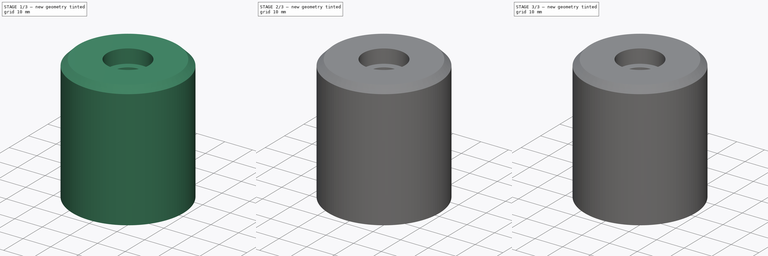
[diagram: build sequence overview — one tinted view per stage of 3, left to right]
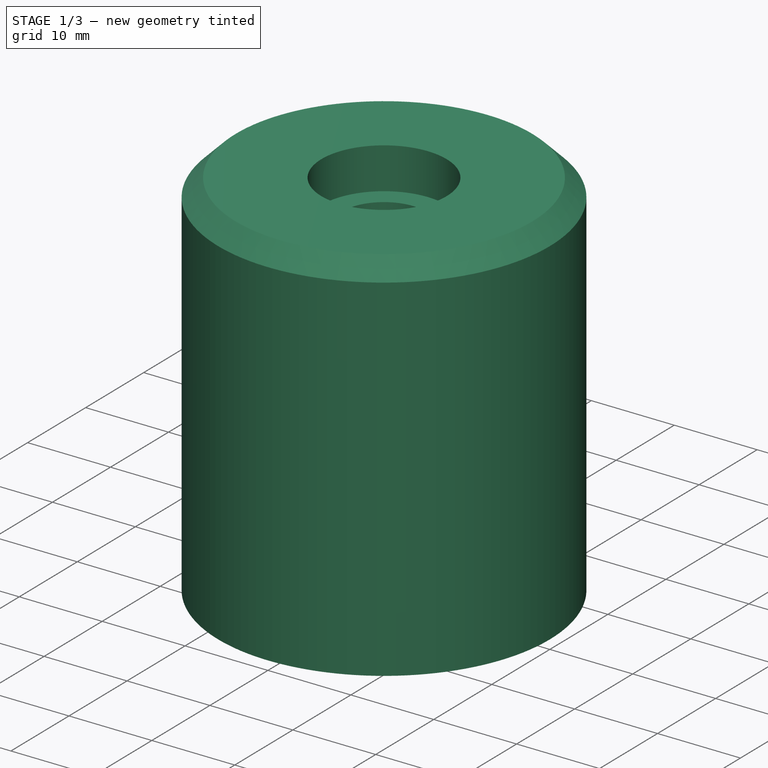
[diagram: stage 1 of 3 — iso view after this stage's code; geometry added in this stage tinted green]
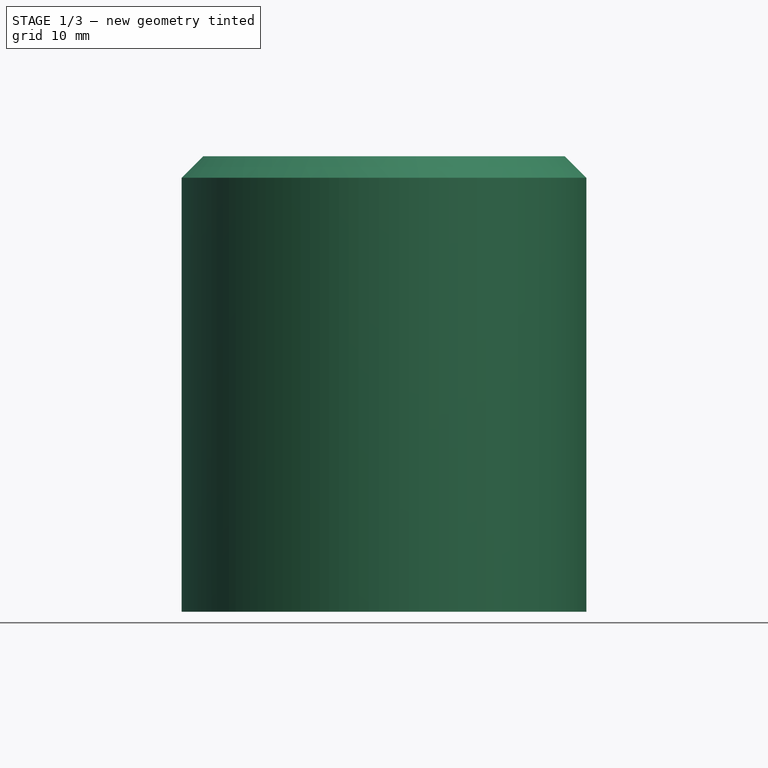
[diagram: stage 1 of 3 — front view after this stage's code; geometry added in this stage tinted green]
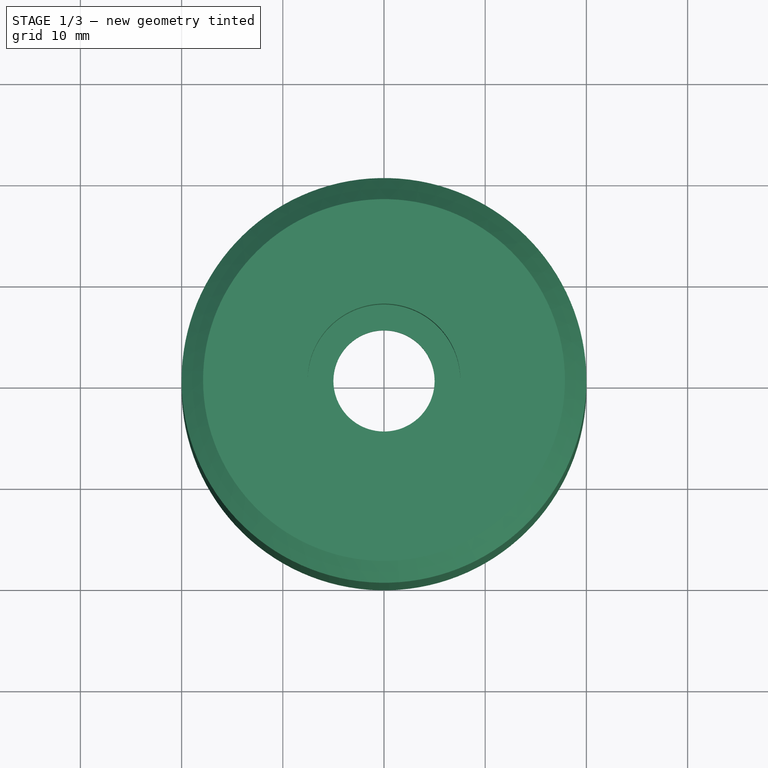
[diagram: stage 1 of 3 — top view after this stage's code; geometry added in this stage tinted green]
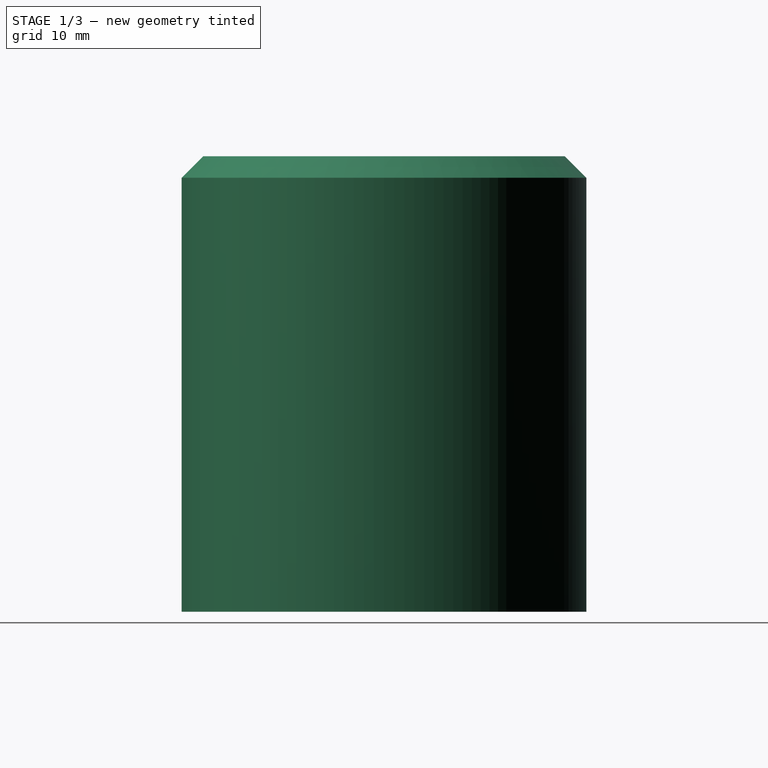
[diagram: stage 1 of 3 — right view after this stage's code; geometry added in this stage tinted green]
FCSTD DOCUMENT  (FreeCAD 0.19R24291 (Git))
Label: windSensorHousing
License: All rights reserved
LicenseURL: http://en.wikipedia.org/wiki/All_rights_reserved
objects: Sketcher::SketchObject×5, PartDesign::Plane×2, PartDesign::Pad×2, PartDesign::Pocket×2, PartDesign::Revolution×1, PartDesign::Chamfer×1, PartDesign::Body×1
note: 20 computed .brp shape members not serialized (recipe doc carries the construction recipe); baked Part::Feature solids carry a one-line shape summary decoded from their .brp

FEATURE [Sketcher::SketchObject] Sketch
  FullyConstrained = false
  MapMode = 5
  Placement = pos=(0,0,0) rot=(1,0,0;1.5708rad)
  Support = -> [XZ_Plane]
  expr: Constraints[35] = .Constraints.thickness
  expr: Constraints[34] = .Constraints.thickness
  expr: Constraints[48] = .Constraints.thickness
  expr: Constraints[39] = .Constraints.thickness
  sketch-geometry (17):
    g0: LineSegment StartX=20 StartY=0 StartZ=0 EndX=20 EndY=42.8787 EndZ=0
    g1: LineSegment StartX=20 StartY=42.8787 StartZ=0 EndX=17.8787 EndY=45 EndZ=0
    g2: LineSegment StartX=17.8787 StartY=45 StartZ=0 EndX=7.55 EndY=45 EndZ=0
    g3: LineSegment StartX=7.55 StartY=45 StartZ=0 EndX=7.55 EndY=40 EndZ=0
    g4: LineSegment StartX=7.55 StartY=40 StartZ=0 EndX=5 EndY=40 EndZ=0
    g5: LineSegment StartX=5 StartY=40 StartZ=0 EndX=5 EndY=38.5 EndZ=0
    g6: LineSegment StartX=5 StartY=38.5 StartZ=0 EndX=9.05 EndY=38.5 EndZ=0
    g7: LineSegment StartX=9.05 StartY=38.5 StartZ=0 EndX=9.05 EndY=43.5 EndZ=0
    g8: LineSegment StartX=9.05 StartY=43.5 StartZ=0 EndX=17.2574 EndY=43.5 EndZ=0
    g9: LineSegment StartX=17.2574 StartY=43.5 StartZ=0 EndX=18.5 EndY=42.2574 EndZ=0
    g10: LineSegment StartX=18.5 StartY=42.2574 StartZ=0 EndX=18.5 EndY=0 EndZ=0
    g11: LineSegment StartX=18.5 StartY=0 StartZ=0 EndX=20 EndY=0 EndZ=0
    g12: LineSegment StartX=9.05 StartY=43.5 StartZ=0 EndX=9.05 EndY=45 EndZ=0
    g13: LineSegment StartX=7.55 StartY=40 StartZ=0 EndX=7.55 EndY=38.5 EndZ=0
    g14: LineSegment StartX=7.55 StartY=40 StartZ=0 EndX=9.05 EndY=40 EndZ=0
    g15: LineSegment StartX=18.5 StartY=19.0145 StartZ=0 EndX=20 EndY=19.0145 EndZ=0
    g16: LineSegment StartX=17.9126 StartY=42.8447 StartZ=0 EndX=18.9733 EndY=43.9054 EndZ=0
  constraints (51):
    c: Vertical(g0)
    c: Coincident(g1,g0)
    c: Coincident(g2,g1)
    c: Horizontal(g2)
    c: Coincident(g3,g2)
    c: Vertical(g3)
    c: Coincident(g4,g3)
    c: Horizontal(g4)
    c: Coincident(g5,g4)
    c: Vertical(g5)
    c: Coincident(g6,g5)
    c: Horizontal(g6)
    c: Vertical(g7)
    c: Coincident(g8,g7)
    c: Horizontal(g8)
    c: Coincident(g9,g8)
    c: Coincident(g10,g9)
    c: Vertical(g10)
    c: Coincident(g7,g6)
    c: PointOnObject(g11,g-1)
    c: Coincident(g11,g0)
    c: Horizontal(g11)
    c: Parallel(g9,g1)
    c: DistanceX(g-1,g0) = 20
    c: DistanceY(g5,g5) = 1.5  'thickness'
    c: Coincident(g12,g7)
    c: PointOnObject(g12,g2)
    c: Vertical(g12)
    c: Coincident(g13,g3)
    c: PointOnObject(g13,g6)
    c: Vertical(g13)
    c: Coincident(g14,g3)
    c: PointOnObject(g14,g7)
    c: Horizontal(g14)
    c: Distance(g14) = 1.5
    c: Distance(g12) = 1.5
    c: PointOnObject(g15,g10)
    c: PointOnObject(g15,g0)
    c: Horizontal(g15)
    c: Distance(g15) = 1.5
    c: DistanceX(g-1,g2) = 7.55
    c: DistanceX(g-1,g5) = 5
    c: DistanceY(g-1,g1) = 45
    c: DistanceY(g3,g3) = 5
    c: Angle(g1,g0) = 2.35619
    c: PointOnObject(g16,g9)
    c: PointOnObject(g16,g1)
    c: Perpendicular(g16,g1)
    c: Distance(g16) = 1.5
    c: Distance(g0,g1) = 3
    c: Coincident(g10,g11)
FEATURE [PartDesign::Revolution] Revolution
  Angle = 360
  Axis = (0,-2e-16,1)
  Base = (0,0,0)
  Placement = pos=(0,0,0) rot=(1,0,0;1.5708rad)
  Profile = -> Sketch
  ReferenceAxis = -> Sketch [V_Axis]
  Reversed = true
FEATURE [PartDesign::Plane] DatumPlane
  AttachmentOffset = pos=(0,0,-21) rot=(0,0,1;0rad)
  Length = 60
  MapMode = 45
  Placement = pos=(-2.1e-15,-8.7e-15,42.1287) rot=(0,1,0;3.14159rad)
  ResizeMode = 0
  Support = -> [Revolution]
  Width = 60
FEATURE [Sketcher::SketchObject] Sketch001
  FullyConstrained = true
  MapMode = 5
  Placement = pos=(-2.1e-15,-8.7e-15,42.1287) rot=(0,1,0;3.14159rad)
  Support = -> [DatumPlane]
  sketch-geometry (4):
    g0: LineSegment StartX=16.9115 StartY=7.5 StartZ=0 EndX=13.7115 EndY=7.5 EndZ=0
    g1: LineSegment StartX=13.7115 StartY=7.5 StartZ=0 EndX=13.7115 EndY=-7.5 EndZ=0
    g2: LineSegment StartX=13.7115 StartY=-7.5 StartZ=0 EndX=16.9115 EndY=-7.5 EndZ=0
    g3: ArcOfCircle CenterX=0 CenterY=0 CenterZ=0 NormalX=0 NormalY=0 NormalZ=1 AngleXU=0 Radius=18.5 StartAngle=5.86576 EndAngle=6.70061
  constraints (11):
    c: Horizontal(g0)
    c: Coincident(g1,g0)
    c: Coincident(g2,g1)
    c: Horizontal(g2)
    c: Symmetric(g0,g1,g-1)
    c: DistanceY(g1,g1) = 15
    c: DistanceX(g0,g0) = 3.2
    c: Coincident(g3,g-1)
    c: Radius(g3) = 18.5
    c: Coincident(g3,g2)
    c: Coincident(g3,g0)
FEATURE [PartDesign::Pad] Pad
  BaseFeature = -> Revolution
  Direction = (1,1,1)
  Length = 20
  Length2 = 100
  Placement = pos=(0,0,0) rot=(1,0,0;1.5708rad)
  Profile = -> Sketch001
  Type = 0
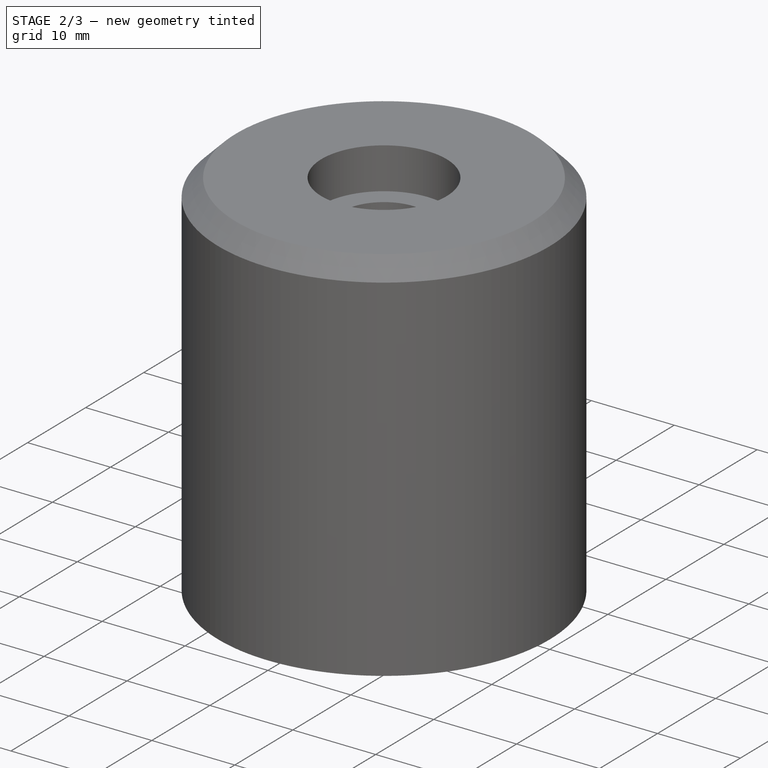
[diagram: stage 2 of 3 — iso view after this stage's code; geometry added in this stage tinted green]
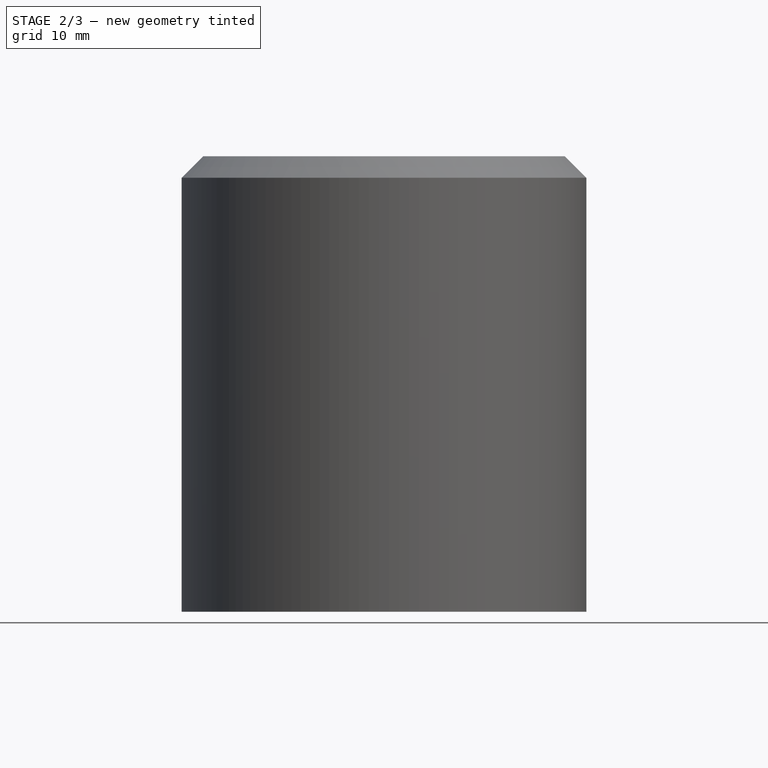
[diagram: stage 2 of 3 — front view after this stage's code; geometry added in this stage tinted green]
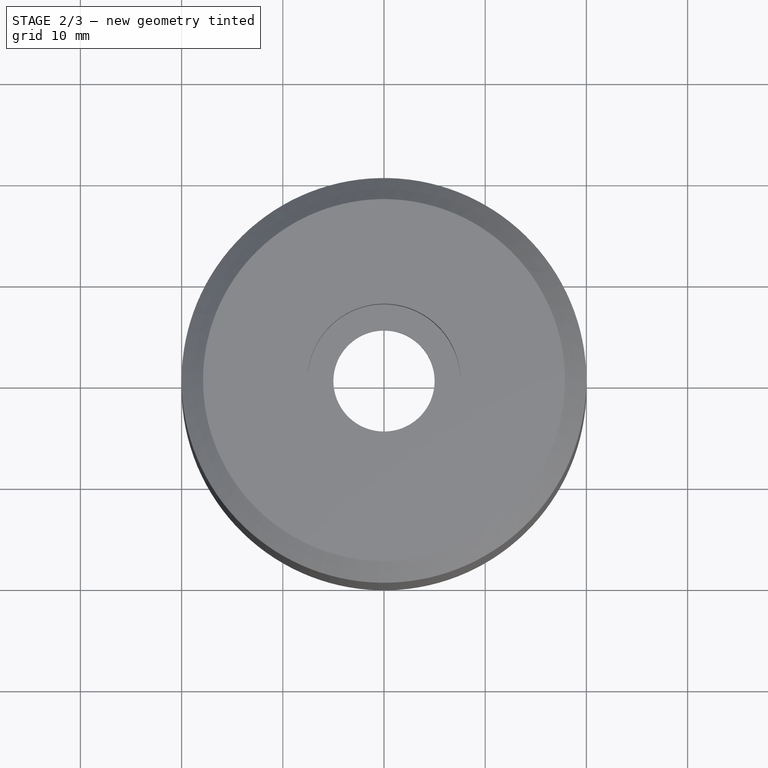
[diagram: stage 2 of 3 — top view after this stage's code; geometry added in this stage tinted green]
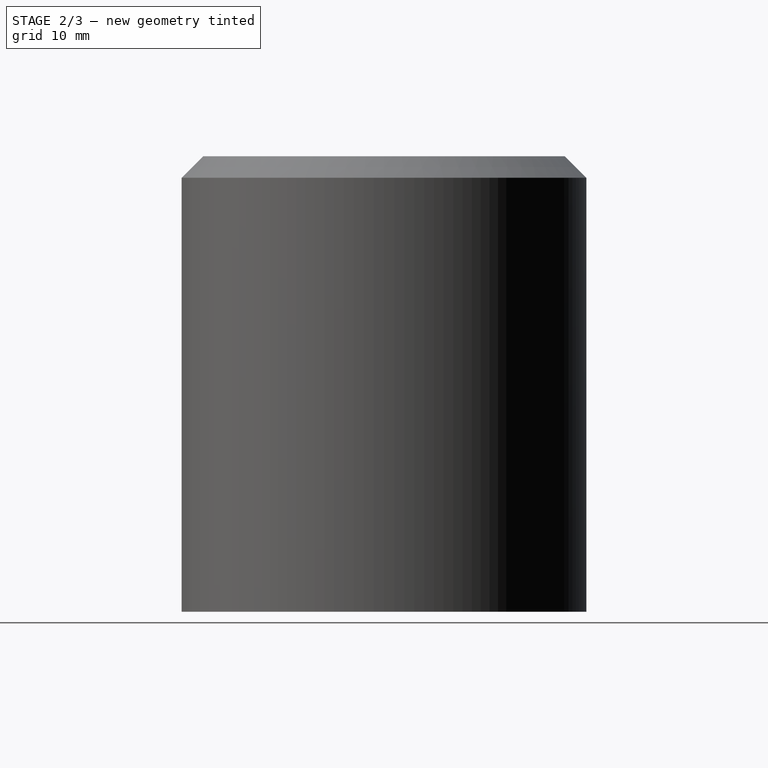
[diagram: stage 2 of 3 — right view after this stage's code; geometry added in this stage tinted green]
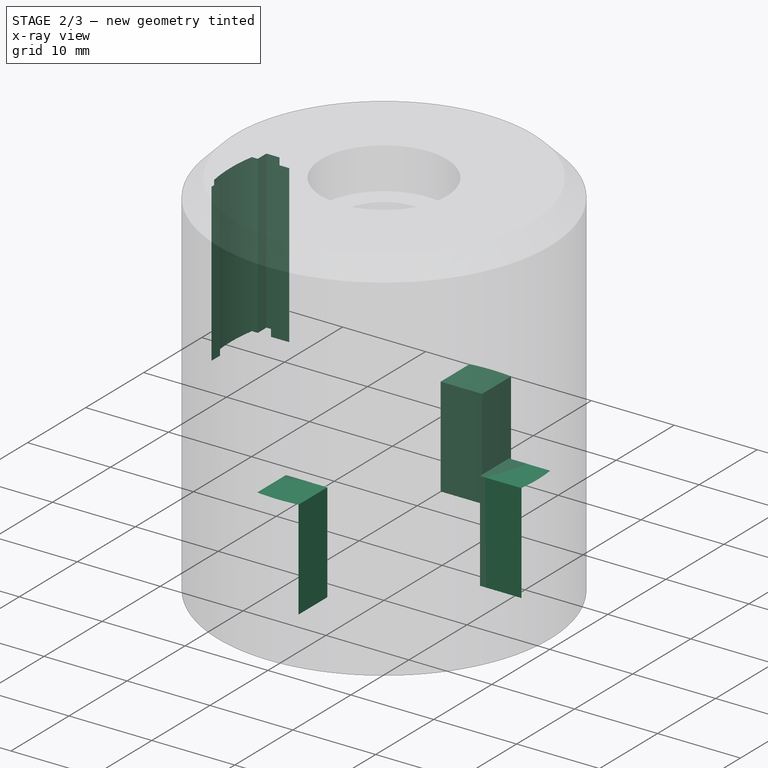
[diagram: stage 2 of 3 — x-ray composite at the iso view; earlier geometry ghosted, this stage's added geometry solid]
FEATURE [Sketcher::SketchObject] Sketch002
  FullyConstrained = true
  MapMode = 5
  Placement = pos=(0,0,22.1287) rot=(1,0,0;3.14159rad)
  Support = -> [Pad]
  sketch-geometry (12):
    g0: LineSegment StartX=-17.5123 StartY=4.75 StartZ=0 EndX=-17.5123 EndY=3.25 EndZ=0
    g1: LineSegment StartX=-17.5123 StartY=4.75 StartZ=0 EndX=-15.9123 EndY=4.75 EndZ=0
    g2: LineSegment StartX=-15.9123 StartY=4.75 StartZ=0 EndX=-15.9123 EndY=3.25 EndZ=0
    g3: LineSegment StartX=-15.9123 StartY=3.25 StartZ=0 EndX=-13.7 EndY=3.25 EndZ=0
    g4: LineSegment StartX=-17.5123 StartY=3.25 StartZ=0 EndX=-18.2123 EndY=3.25 EndZ=0
    g5: LineSegment StartX=-18.2123 StartY=-3.25 StartZ=0 EndX=-17.5123 EndY=-3.25 EndZ=0
    g6: LineSegment StartX=-17.5123 StartY=-3.25 StartZ=0 EndX=-17.5123 EndY=-4.75 EndZ=0
    g7: LineSegment StartX=-17.5123 StartY=-4.75 StartZ=0 EndX=-15.9123 EndY=-4.75 EndZ=0
    g8: LineSegment StartX=-15.9123 StartY=-4.75 StartZ=0 EndX=-15.9123 EndY=-3.25 EndZ=0
    g9: LineSegment StartX=-15.9123 StartY=-3.25 StartZ=0 EndX=-13.7 EndY=-3.25 EndZ=0
    g10: LineSegment StartX=-13.7 StartY=3.25 StartZ=0 EndX=-13.7 EndY=-3.25 EndZ=0
    g11: ArcOfCircle CenterX=0 CenterY=0 CenterZ=0 NormalX=0 NormalY=0 NormalZ=1 AngleXU=0 Radius=18.5 StartAngle=2.965 EndAngle=3.31818
  constraints (34):
    c: Vertical(g0)
    c: Coincident(g1,g0)
    c: Horizontal(g1)
    c: Coincident(g2,g1)
    c: Vertical(g2)
    c: Coincident(g3,g2)
    c: Horizontal(g3)
    c: Coincident(g4,g0)
    c: Horizontal(g4)
    c: Horizontal(g5)
    c: Coincident(g6,g5)
    c: Vertical(g6)
    c: Coincident(g7,g6)
    c: Coincident(g8,g7)
    c: Vertical(g8)
    c: Coincident(g9,g8)
    c: Horizontal(g9)
    c: Coincident(g10,g3)
    c: Coincident(g10,g9)
    c: Vertical(g10)
    c: Equal(g0,g2)
    c: Equal(g6,g8)
    c: DistanceX(g0,g1) = 1.6
    c: DistanceY(g7,g1) = 9.5
    c: Symmetric(g0,g5,g-1)
    c: Symmetric(g2,g8,g-1)
    c: Coincident(g11,g-1)
    c: Radius(g11) = 18.5
    c: Coincident(g11,g4)
    c: Coincident(g11,g5)
    c: DistanceY(g2,g2) = 1.5
    c: DistanceX(g9,g11) = 13.7
    c: Equal(g6,g0)
    c: DistanceX(g4,g4) = 0.7
FEATURE [PartDesign::Pocket] Pocket
  BaseFeature = -> Pad
  Length = 19
  Length2 = 100
  Placement = pos=(0,0,0) rot=(1,0,0;1.5708rad)
  Profile = -> Sketch002
  Type = 0
FEATURE [PartDesign::Plane] DatumPlane001
  AttachmentOffset = pos=(0,0,-5) rot=(0,0,1;0rad)
  Length = 60
  MapMode = 5
  Placement = pos=(0,-1.1e-15,5) rot=(1,0,0;3.14159rad)
  ResizeMode = 0
  Support = -> [Pocket]
  Width = 60
FEATURE [Sketcher::SketchObject] Sketch003
  FullyConstrained = true
  MapMode = 5
  Placement = pos=(0,-1.1e-15,5) rot=(1,0,0;3.14159rad)
  Support = -> [DatumPlane001]
  sketch-geometry (12):
    g0: ArcOfCircle CenterX=0 CenterY=0 CenterZ=0 NormalX=0 NormalY=0 NormalZ=1 AngleXU=0 Radius=18.5 StartAngle=4.57684 EndAngle=4.84794
    g1: LineSegment StartX=18.3303 StartY=2.5 StartZ=0 EndX=13.3303 EndY=2.5 EndZ=0
    g2: LineSegment StartX=13.3303 StartY=2.5 StartZ=0 EndX=13.3303 EndY=-2.5 EndZ=0
    g3: LineSegment StartX=13.3303 StartY=-2.5 StartZ=0 EndX=18.3303 EndY=-2.5 EndZ=0
    g4: LineSegment StartX=-2.5 StartY=18.3303 StartZ=0 EndX=-2.5 EndY=13.3303 EndZ=0
    g5: LineSegment StartX=-2.5 StartY=13.3303 StartZ=0 EndX=2.5 EndY=13.3303 EndZ=0
    g6: LineSegment StartX=2.5 StartY=13.3303 StartZ=0 EndX=2.5 EndY=18.3303 EndZ=0
    g7: LineSegment StartX=-2.5 StartY=-18.3303 StartZ=0 EndX=-2.5 EndY=-13.3303 EndZ=0
    g8: LineSegment StartX=-2.5 StartY=-13.3303 StartZ=0 EndX=2.5 EndY=-13.3303 EndZ=0
    g9: LineSegment StartX=2.5 StartY=-13.3303 StartZ=0 EndX=2.5 EndY=-18.3303 EndZ=0
    g10: ArcOfCircle CenterX=0 CenterY=0 CenterZ=0 NormalX=0 NormalY=0 NormalZ=1 AngleXU=0 Radius=18.5 StartAngle=1.43525 EndAngle=1.70635
    g11: ArcOfCircle CenterX=0 CenterY=0 CenterZ=0 NormalX=0 NormalY=0 NormalZ=1 AngleXU=0 Radius=18.5 StartAngle=6.14764 EndAngle=6.41874
  constraints (36):
    c: Coincident(g0,g-1)
    c: Radius(g0) = 18.5
    c: Horizontal(g1)
    c: Coincident(g2,g1)
    c: Vertical(g2)
    c: Coincident(g3,g2)
    c: Horizontal(g3)
    c: Vertical(g4)
    c: Coincident(g5,g4)
    c: Horizontal(g5)
    c: Coincident(g6,g5)
    c: Vertical(g6)
    c: Vertical(g7)
    c: Coincident(g8,g7)
    c: Horizontal(g8)
    c: Coincident(g9,g8)
    c: Vertical(g9)
    c: Equal(g8,g2)
    c: Equal(g2,g5)
    c: Equal(g4,g6)
    c: Equal(g6,g1)
    c: Equal(g1,g3)
    c: Equal(g3,g7)
    c: Equal(g7,g9)
    c: DistanceX(g5,g5) = 5
    c: DistanceY(g6,g6) = 5
    c: Coincident(g0,g7)
    c: Coincident(g10,g4)
    c: Equal(g0,g10)
    c: Coincident(g11,g1)
    c: Coincident(g10,g6)
    c: Coincident(g0,g10)
    c: Equal(g0,g11)
    c: Coincident(g0,g9)
    c: Coincident(g11,g3)
    c: Coincident(g0,g11)
FEATURE [PartDesign::Pad] Pad001
  BaseFeature = -> Pocket
  Direction = (1,1,1)
  Length = 12
  Length2 = 100
  Placement = pos=(0,0,0) rot=(1,0,0;1.5708rad)
  Profile = -> Sketch003
  Reversed = true
  Type = 0
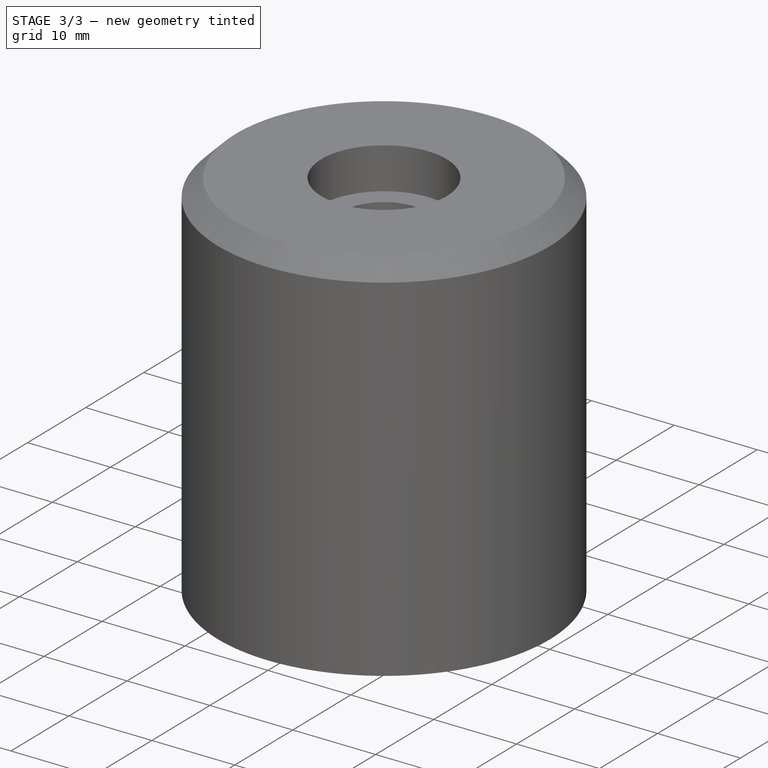
[diagram: stage 3 of 3 — iso view after this stage's code; geometry added in this stage tinted green]
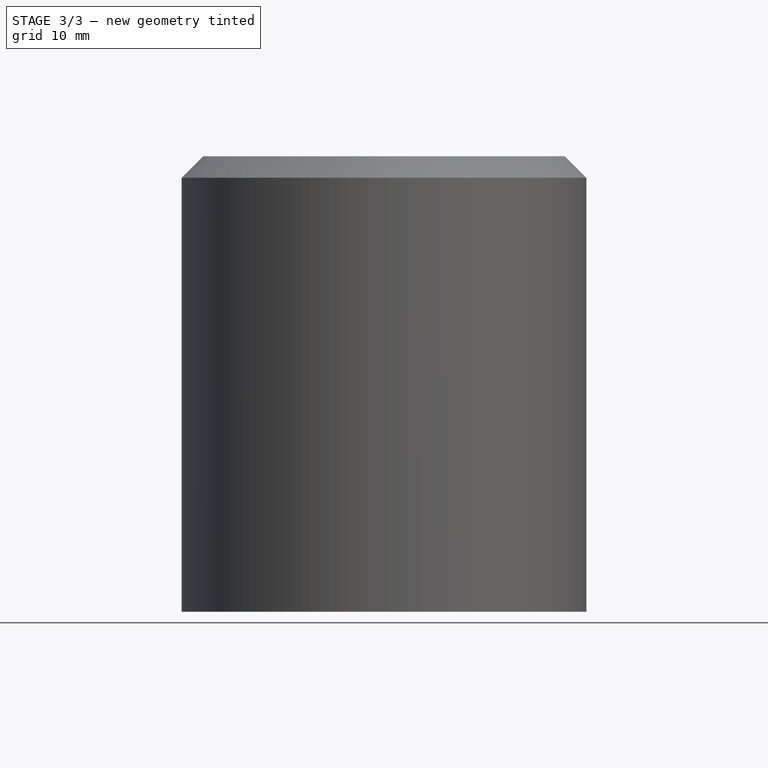
[diagram: stage 3 of 3 — front view after this stage's code; geometry added in this stage tinted green]
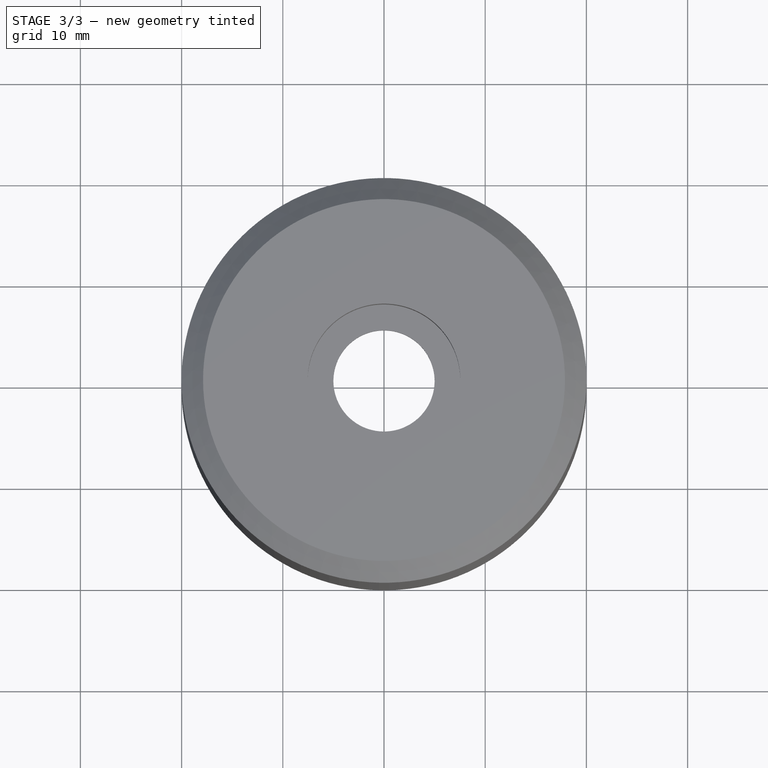
[diagram: stage 3 of 3 — top view after this stage's code; geometry added in this stage tinted green]
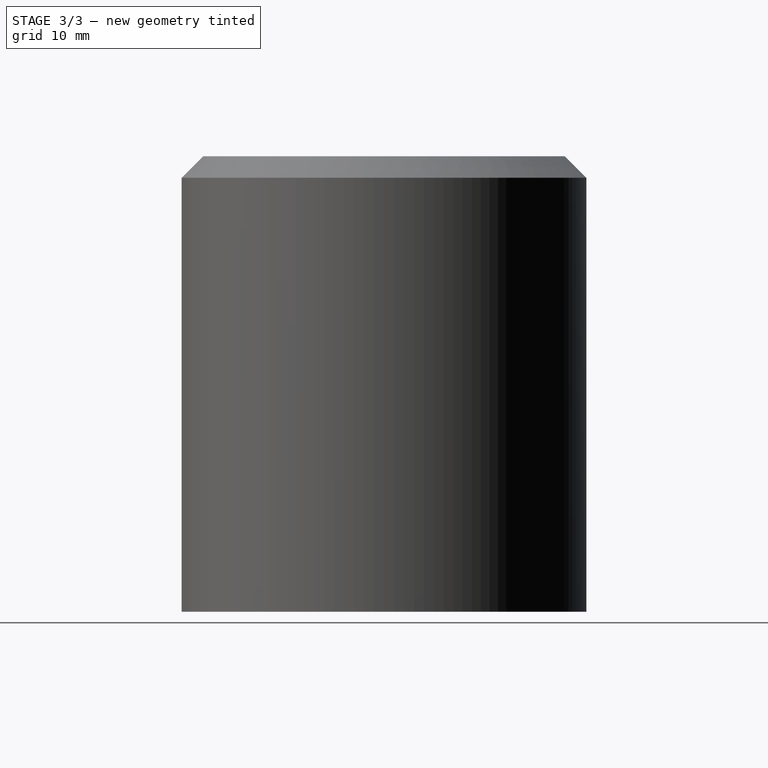
[diagram: stage 3 of 3 — right view after this stage's code; geometry added in this stage tinted green]
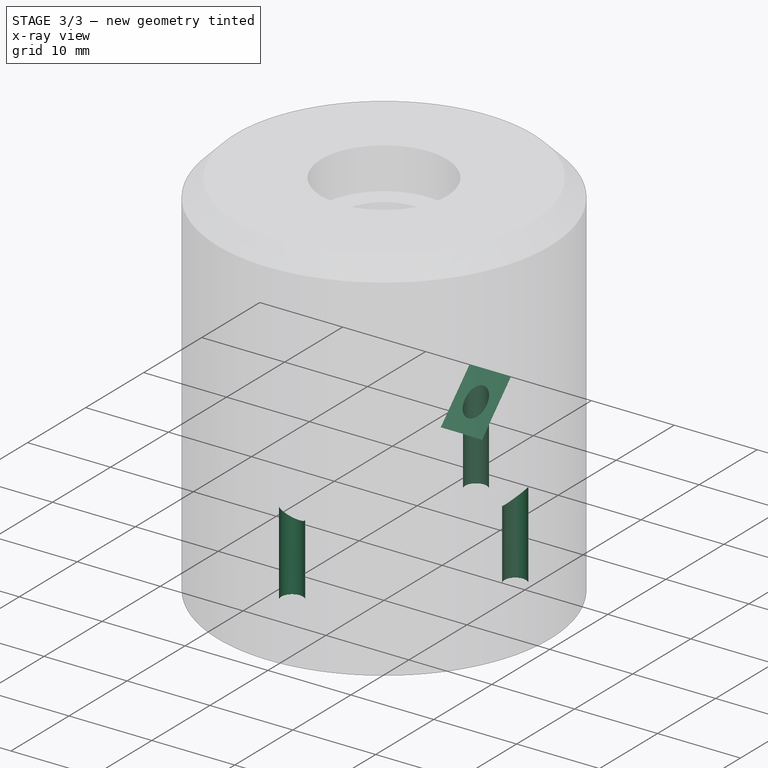
[diagram: stage 3 of 3 — x-ray composite at the iso view; earlier geometry ghosted, this stage's added geometry solid]
FEATURE [PartDesign::Chamfer] Chamfer
  Angle = 45
  Base = -> Pad001 [Edge32,Edge69,Edge75]
  BaseFeature = -> Pad001
  ChamferType = 0
  FlipDirection = false
  Placement = pos=(0,0,0) rot=(1,0,0;1.5708rad)
  Size = 5
  Size2 = 1
  SupportTransform = false
FEATURE [Sketcher::SketchObject] Sketch004
  ExternalGeometry = -> [Chamfer]
  FullyConstrained = true
  MapMode = 5
  Placement = pos=(0,-1.8e-15,5) rot=(1,0,0;3.14159rad)
  Support = -> [Chamfer]
  sketch-geometry (3):
    g0: Circle CenterX=0 CenterY=15.8303 CenterZ=0 NormalX=0 NormalY=0 NormalZ=1 AngleXU=0 Radius=1.3
    g1: Circle CenterX=15.8303 CenterY=0 CenterZ=0 NormalX=0 NormalY=0 NormalZ=1 AngleXU=0 Radius=1.3
    g2: Circle CenterX=0 CenterY=-15.8303 CenterZ=0 NormalX=0 NormalY=0 NormalZ=1 AngleXU=0 Radius=1.3
  constraints (9):
    c: PointOnObject(g0,g-2)
    c: PointOnObject(g1,g-1)
    c: PointOnObject(g2,g-2)
    c: Equal(g0,g1)
    c: Equal(g1,g2)
    c: Radius(g0) = 1.3
    c: DistanceY(g-3,g0) = 2.5
    c: DistanceX(g-4,g1) = 2.5
    c: DistanceY(g2,g-5) = 2.5
FEATURE [PartDesign::Pocket] Pocket001
  BaseFeature = -> Chamfer
  Length = 15
  Length2 = 100
  Placement = pos=(0,0,0) rot=(1,0,0;1.5708rad)
  Profile = -> Sketch004
  Type = 0
FEATURE [PartDesign::Body] Body
  Group = -> [Sketch,Revolution,DatumPlane,Sketch001,Pad,Sketch002,Pocket,DatumPlane001,Sketch003,Pad001,Chamfer,Sketch004,Pocket001]
  Origin = -> Origin
  Tip = -> Pocket001
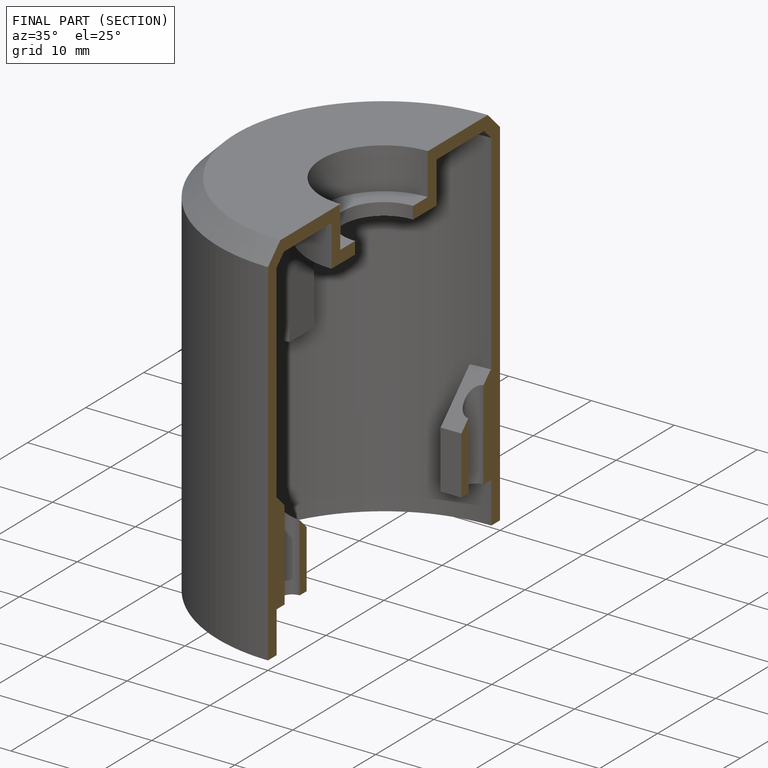
[diagram: finished part — half-section view (interior)]
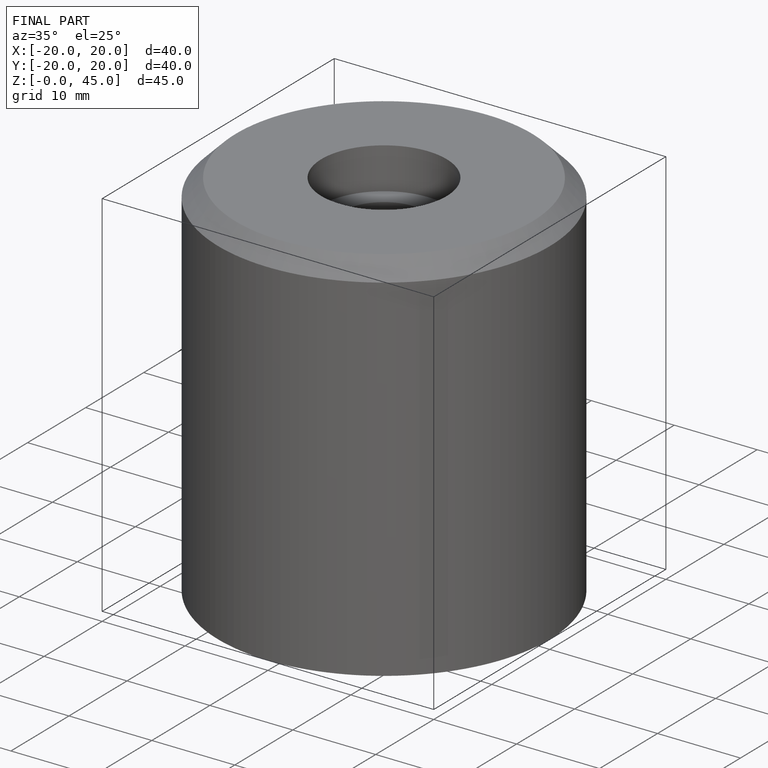
[diagram: finished part — iso view with bounding-box wireframe]
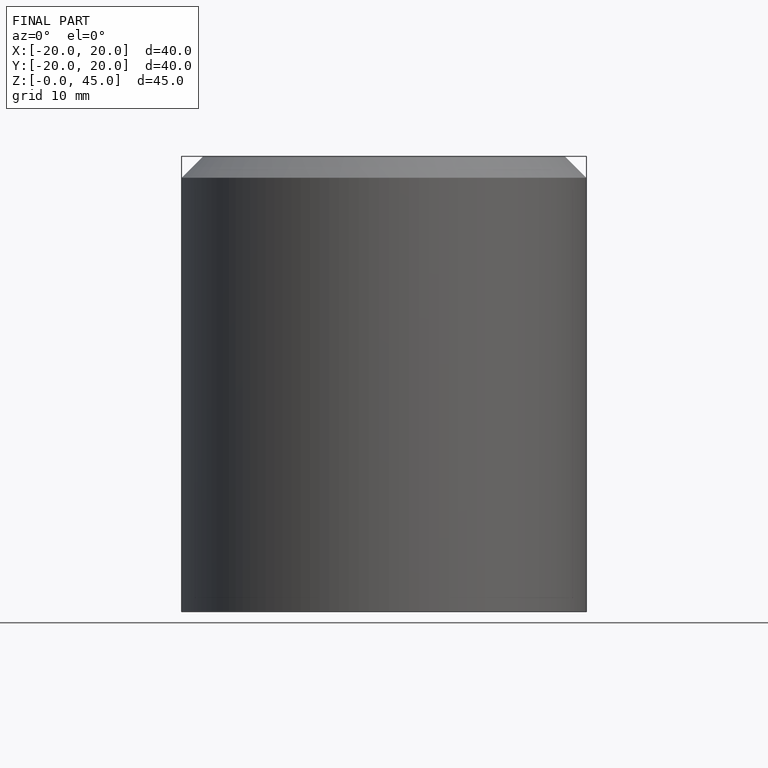
[diagram: finished part — front view with bounding-box wireframe]
